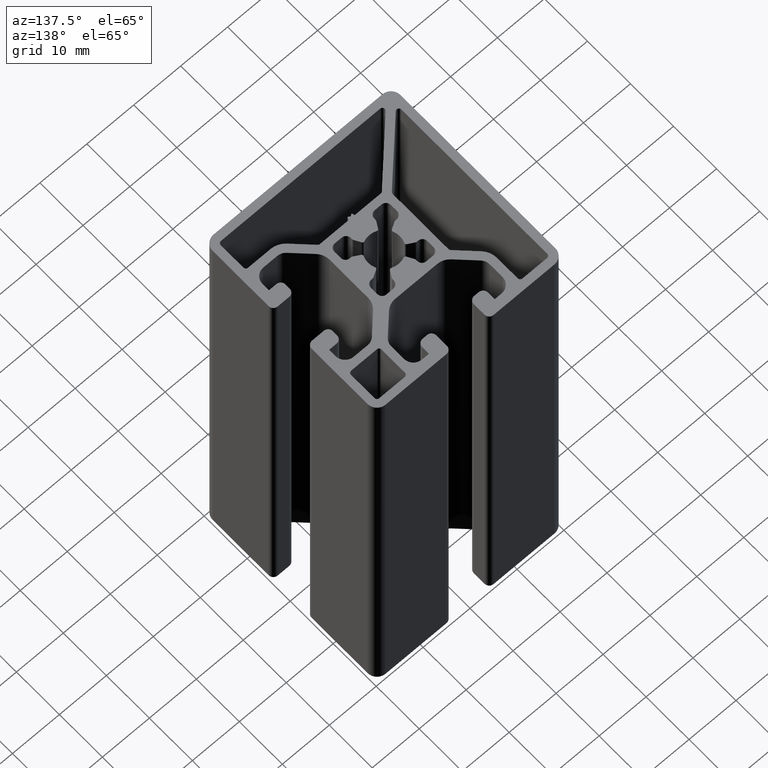
[diagram: clean part render]
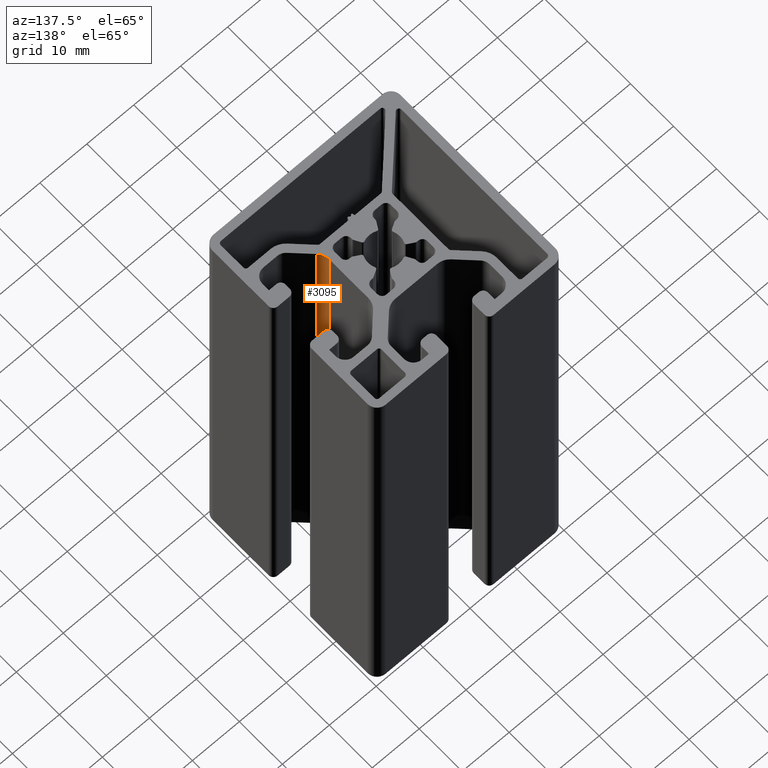
[diagram: same view with one face highlighted and labeled with its STEP entity id]
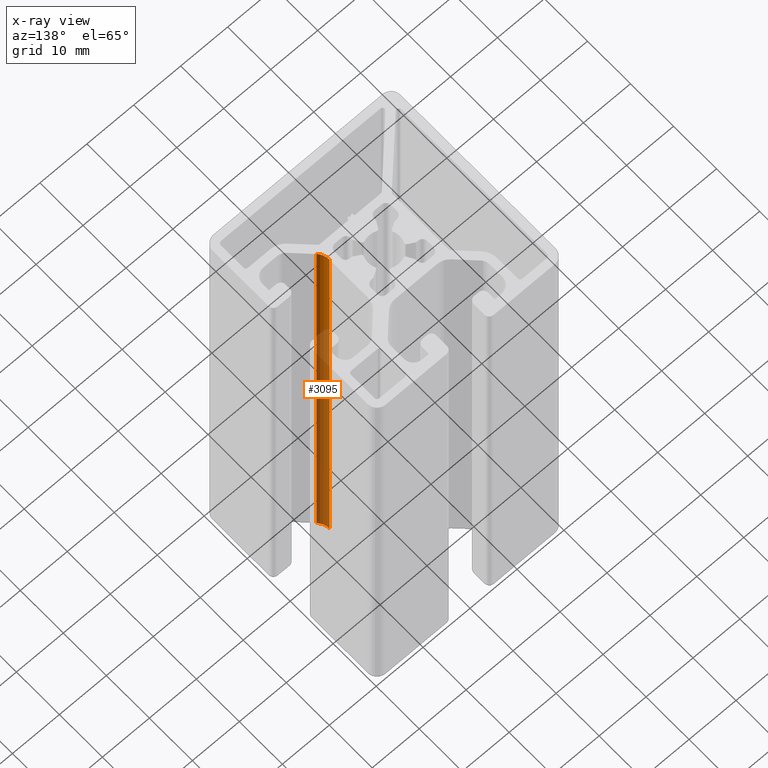
[diagram: x-ray of the same camera — body ghosted, the highlighted face saturated]
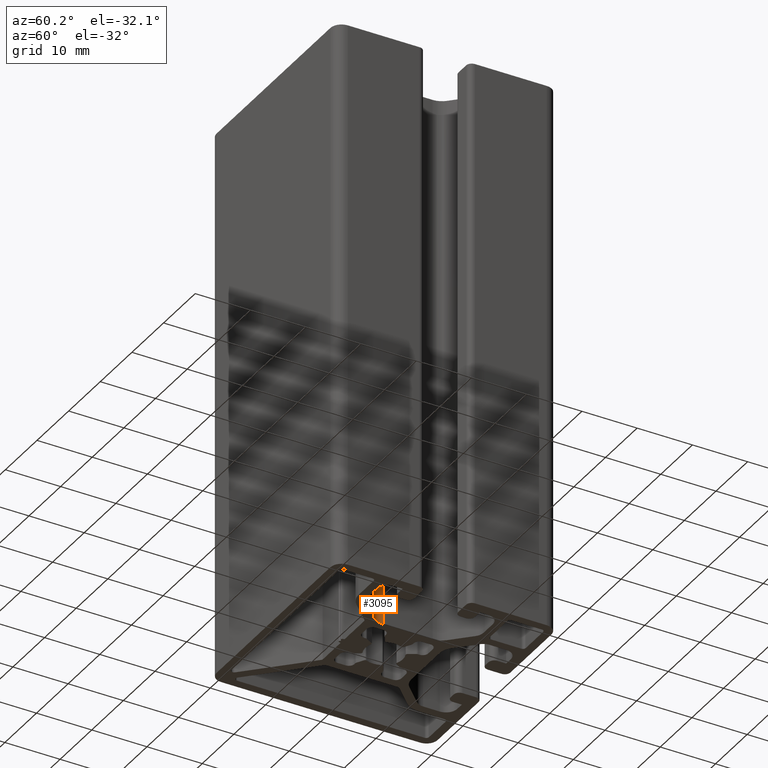
[diagram: same view with one face highlighted and labeled with its STEP entity id]
A machine part, auxiliary view. The second image highlights one B-rep face of the part: STEP entity #3095.
The next image is the same camera in x-ray: the body ghosted, the highlighted face saturated — about 72% of this face is hidden behind the body in this view.
A second angle (auxiliary view) of the same face is appended — the face is thin or edge-on in the first view.
In plain terms, the highlighted cylindrical surface (edge-blend (fillet) strip) has radius 3 mm, axis along (0, 0, 1).
Its self-contained STEP definition (entity closure, byte-faithful):
#216=FACE_OUTER_BOUND('',#373,.T.);
#373=EDGE_LOOP('',(#2429,#2430,#2431,#2432));
#649=LINE('',#5080,#958);
#650=LINE('',#5086,#959);
#958=VECTOR('',#4144,100.);
#959=VECTOR('',#4151,100.);
#1160=CIRCLE('',#3373,3.);
#1161=CIRCLE('',#3374,3.);
#1428=VERTEX_POINT('',#5076);
#1429=VERTEX_POINT('',#5078);
#1430=VERTEX_POINT('',#5082);
#1431=VERTEX_POINT('',#5084);
#1851=EDGE_CURVE('',#1429,#1428,#649,.T.);
#1852=EDGE_CURVE('',#1428,#1430,#1160,.T.);
#1853=EDGE_CURVE('',#1431,#1429,#1161,.T.);
#1854=EDGE_CURVE('',#1431,#1430,#650,.T.);
#2429=ORIENTED_EDGE('',*,*,#1852,.F.);
#2430=ORIENTED_EDGE('',*,*,#1851,.F.);
#2431=ORIENTED_EDGE('',*,*,#1853,.F.);
#2432=ORIENTED_EDGE('',*,*,#1854,.T.);
#2962=CYLINDRICAL_SURFACE('',#3372,3.);
#3095=ADVANCED_FACE('',(#216),#2962,.F.);
#3372=AXIS2_PLACEMENT_3D('',#5081,#4145,#4146);
#3373=AXIS2_PLACEMENT_3D('',#5083,#4147,#4148);
#3374=AXIS2_PLACEMENT_3D('',#5085,#4149,#4150);
#4144=DIRECTION('',(0.,0.,1.));
#4145=DIRECTION('center_axis',(0.,0.,1.));
#4146=DIRECTION('ref_axis',(-1.,-2.03540887847945E-15,0.));
#4147=DIRECTION('center_axis',(0.,0.,-1.));
#4148=DIRECTION('ref_axis',(-1.,-2.03540887847945E-15,0.));
#4149=DIRECTION('center_axis',(0.,0.,1.));
#4150=DIRECTION('ref_axis',(-1.,-2.03540887847945E-15,0.));
#4151=DIRECTION('',(0.,0.,1.));
#5076=CARTESIAN_POINT('',(8.37869265644035,-6.610912703474,100.));
#5078=CARTESIAN_POINT('',(8.37869265644035,-6.610912703474,0.));
#5080=CARTESIAN_POINT('',(8.37869265644035,-6.610912703474,0.));
#5081=CARTESIAN_POINT('Origin',(10.500013,-4.48959235991436,0.));
#5082=CARTESIAN_POINT('',(7.50001299999999,-4.48959235991436,100.));
#5083=CARTESIAN_POINT('Origin',(10.500013,-4.48959235991436,100.));
#5084=CARTESIAN_POINT('',(7.50001299999999,-4.48959235991436,0.));
#5085=CARTESIAN_POINT('Origin',(10.500013,-4.48959235991436,0.));
#5086=CARTESIAN_POINT('',(7.50001299999999,-4.48959235991436,0.));